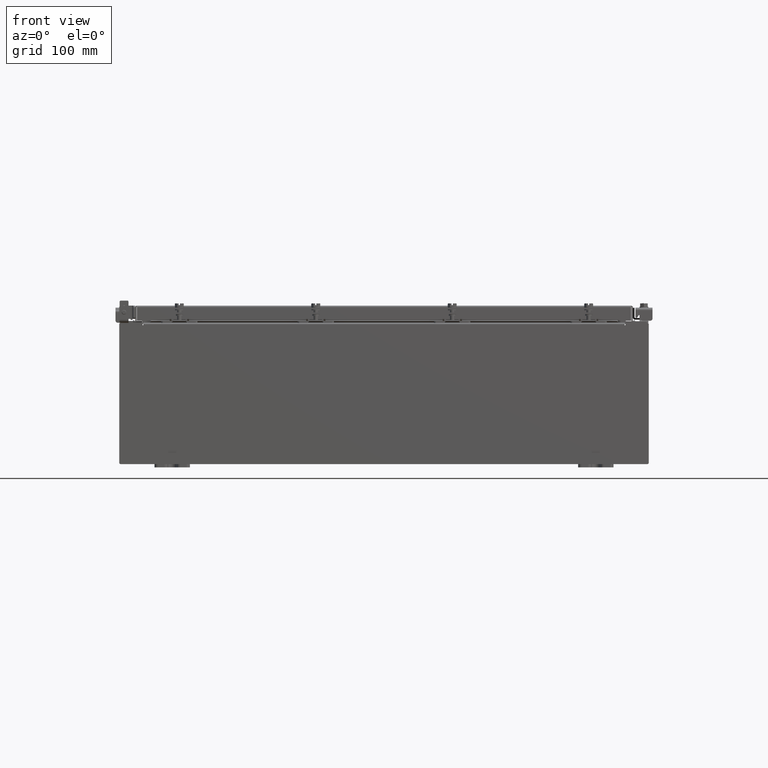
[diagram: clean part render]
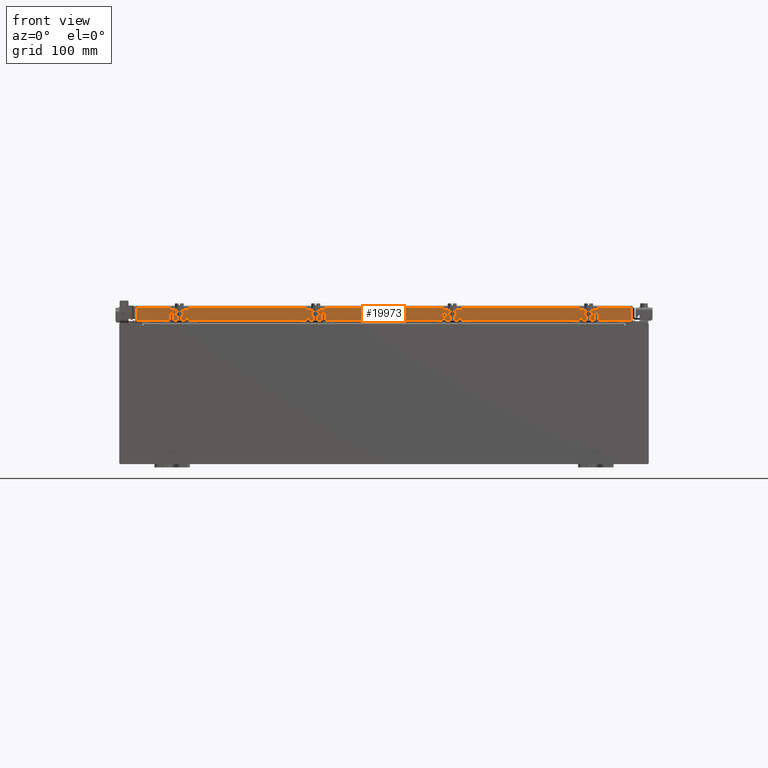
[diagram: same view with one face highlighted and labeled with its STEP entity id]
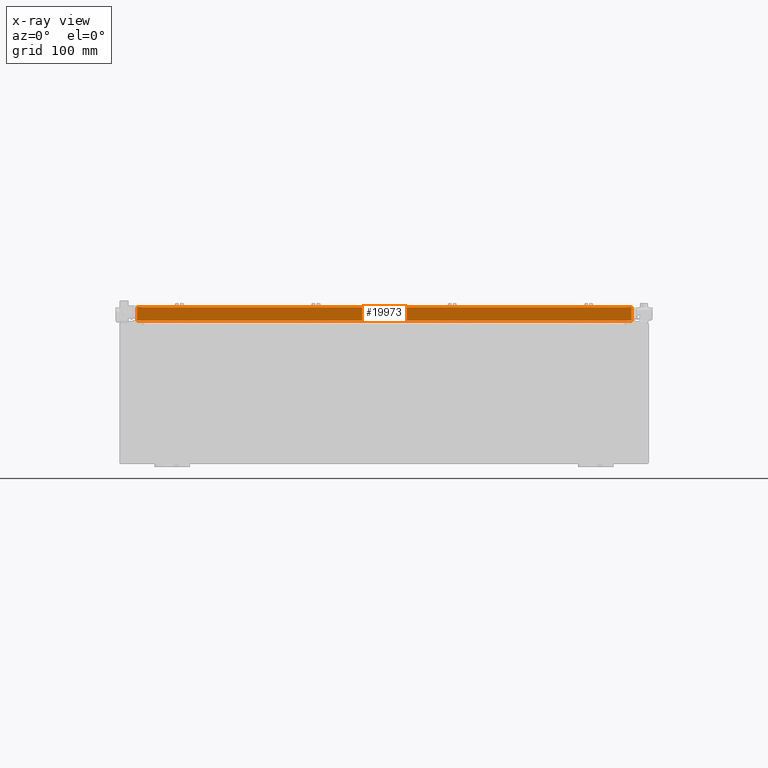
[diagram: x-ray of the same camera — body ghosted, the highlighted face saturated]
A machine part, front view. The second image highlights one B-rep face of the part: STEP entity #19973.
The next image is the same camera in x-ray: the body ghosted, the highlighted face saturated — about 0% of this face is hidden behind the body in this view.
In plain terms, the highlighted planar face has unit normal (-0, 1, -0).
Its self-contained STEP definition (entity closure, byte-faithful):
#171 = EDGE_CURVE ( 'NONE', #15080, #6248, #13733, .T. ) ;
#263 = LINE ( 'NONE', #6881, #18302 ) ;
#1155 = LINE ( 'NONE', #7611, #14521 ) ;
#1244 = VERTEX_POINT ( 'NONE', #22008 ) ;
#1858 = EDGE_LOOP ( 'NONE', ( #9138, #14488, #5276, #21415, #21466, #14682 ) ) ;
#2410 = EDGE_CURVE ( 'NONE', #7494, #20719, #263, .T. ) ;
#2623 = DIRECTION ( 'NONE',  ( -1.000000000000000000, 0.0000000000000000000, 0.0000000000000000000 ) ) ;
#3067 = LINE ( 'NONE', #7539, #16394 ) ;
#3313 = EDGE_CURVE ( 'NONE', #20719, #1244, #13323, .T. ) ;
#3446 = CARTESIAN_POINT ( 'NONE',  ( -14.00515786437626500, -11.09399999999999900, -0.08770000000000026400 ) ) ;
#3544 = VERTEX_POINT ( 'NONE', #12950 ) ;
#3722 = CARTESIAN_POINT ( 'NONE',  ( 14.00515786437626900, -11.09399999999999900, -0.07470000000000015500 ) ) ;
#4166 = DIRECTION ( 'NONE',  ( 0.0000000000000000000, -2.818880942772360100E-015, -1.000000000000000000 ) ) ;
#5200 = DIRECTION ( 'NONE',  ( 0.0000000000000000000, 2.818880942772360100E-015, 1.000000000000000000 ) ) ;
#5276 = ORIENTED_EDGE ( 'NONE', *, *, #171, .F. ) ;
#5319 = DIRECTION ( 'NONE',  ( -1.000000000000000000, -0.0000000000000000000, 1.211441035930299800E-016 ) ) ;
#5696 = DIRECTION ( 'NONE',  ( -1.000000000000000000, -0.0000000000000000000, 1.211441035930299800E-016 ) ) ;
#6248 = VERTEX_POINT ( 'NONE', #17958 ) ;
#6790 = CARTESIAN_POINT ( 'NONE',  ( -13.25515786437626500, -11.09399999999999900, -0.8500000000000010900 ) ) ;
#6881 = CARTESIAN_POINT ( 'NONE',  ( 14.09399999999999900, -11.09399999999999900, -0.08770000000000026400 ) ) ;
#7494 = VERTEX_POINT ( 'NONE', #3446 ) ;
#7539 = CARTESIAN_POINT ( 'NONE',  ( 14.09399999999999900, -11.09400000000000100, -0.8499999999999999800 ) ) ;
#7611 = CARTESIAN_POINT ( 'NONE',  ( -14.00515786437626500, -11.09399999999999900, 3.168943672650545400E-014 ) ) ;
#8590 = VECTOR ( 'NONE', #5319, 39.37007874015748100 ) ;
#8854 = EDGE_CURVE ( 'NONE', #1244, #3544, #3067, .T. ) ;
#9138 = ORIENTED_EDGE ( 'NONE', *, *, #2410, .F. ) ;
#10356 = DIRECTION ( 'NONE',  ( 1.000000000000000000, 3.414908049476327800E-031, -9.308245715024052500E-046 ) ) ;
#12145 = VECTOR ( 'NONE', #2623, 39.37007874015748100 ) ;
#12693 = LINE ( 'NONE', #14783, #12145 ) ;
#12950 = CARTESIAN_POINT ( 'NONE',  ( 13.25515786437626500, -11.09399999999999900, -0.8500000000000010900 ) ) ;
#13259 = AXIS2_PLACEMENT_3D ( 'NONE', #19074, #15608, #5200 ) ;
#13323 = LINE ( 'NONE', #3722, #17447 ) ;
#13645 = EDGE_CURVE ( 'NONE', #3544, #15080, #12693, .T. ) ;
#13733 = LINE ( 'NONE', #16916, #8590 ) ;
#13856 = PLANE ( 'NONE',  #13259 ) ;
#14488 = ORIENTED_EDGE ( 'NONE', *, *, #15389, .T. ) ;
#14521 = VECTOR ( 'NONE', #4166, 39.37007874015748100 ) ;
#14682 = ORIENTED_EDGE ( 'NONE', *, *, #3313, .F. ) ;
#14783 = CARTESIAN_POINT ( 'NONE',  ( 13.25515786437626500, -11.09399999999999900, -0.8500000000000010900 ) ) ;
#15080 = VERTEX_POINT ( 'NONE', #6790 ) ;
#15389 = EDGE_CURVE ( 'NONE', #7494, #6248, #1155, .T. ) ;
#15575 = CARTESIAN_POINT ( 'NONE',  ( 14.00515786437626900, -11.09399999999999900, -0.08770000000000026400 ) ) ;
#15608 = DIRECTION ( 'NONE',  ( -3.414908049476327800E-031, 1.000000000000000000, -2.818880942772360100E-015 ) ) ;
#16027 = DIRECTION ( 'NONE',  ( -0.0000000000000000000, -2.818880942772360100E-015, -1.000000000000000000 ) ) ;
#16394 = VECTOR ( 'NONE', #5696, 39.37007874015748100 ) ;
#16916 = CARTESIAN_POINT ( 'NONE',  ( 14.09399999999999900, -11.09400000000000100, -0.8499999999999999800 ) ) ;
#17447 = VECTOR ( 'NONE', #16027, 39.37007874015748100 ) ;
#17958 = CARTESIAN_POINT ( 'NONE',  ( -14.00515786437626500, -11.09400000000000100, -0.8499999999999966500 ) ) ;
#18302 = VECTOR ( 'NONE', #10356, 39.37007874015748100 ) ;
#18482 = FACE_OUTER_BOUND ( 'NONE', #1858, .T. ) ;
#19074 = CARTESIAN_POINT ( 'NONE',  ( 0.0000000000000000000, -11.09399999999999900, 3.168943672650545400E-014 ) ) ;
#19973 = ADVANCED_FACE ( 'NONE', ( #18482 ), #13856, .F. ) ;
#20719 = VERTEX_POINT ( 'NONE', #15575 ) ;
#21415 = ORIENTED_EDGE ( 'NONE', *, *, #13645, .F. ) ;
#21466 = ORIENTED_EDGE ( 'NONE', *, *, #8854, .F. ) ;
#22008 = CARTESIAN_POINT ( 'NONE',  ( 14.00515786437626900, -11.09400000000000100, -0.8499999999999999800 ) ) ;